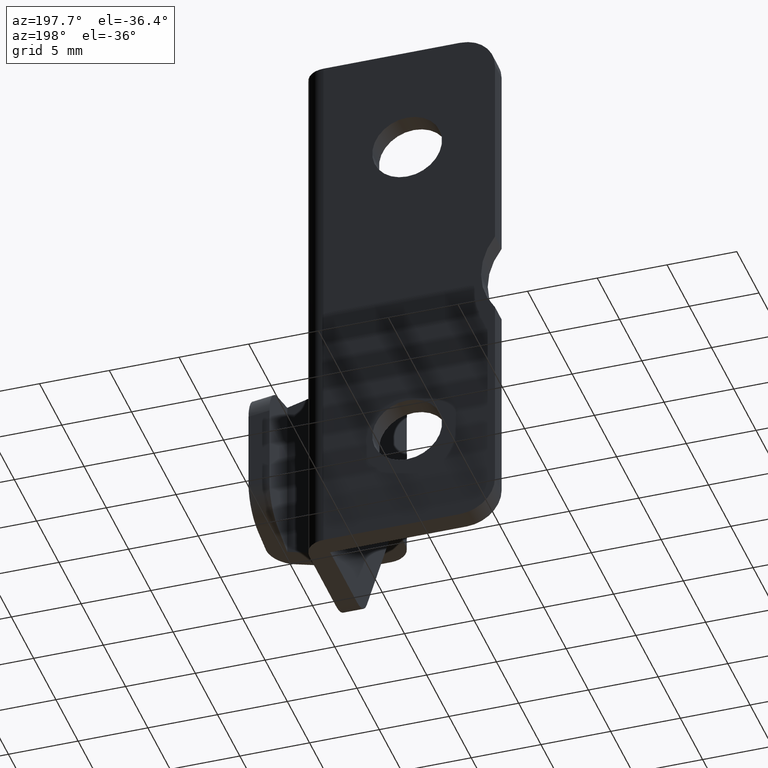
[diagram: clean part render]
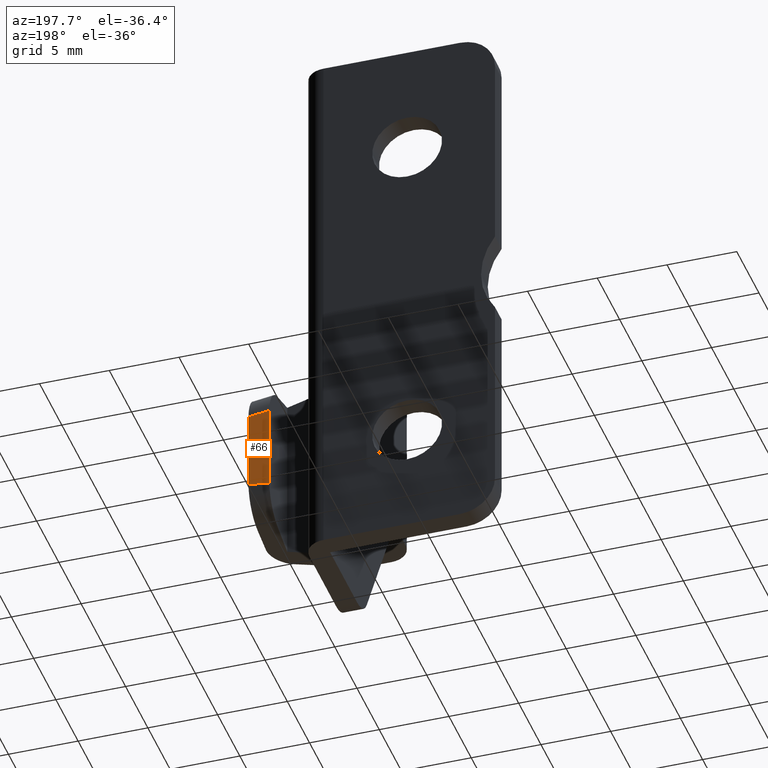
[diagram: same view with one face highlighted and labeled with its STEP entity id]
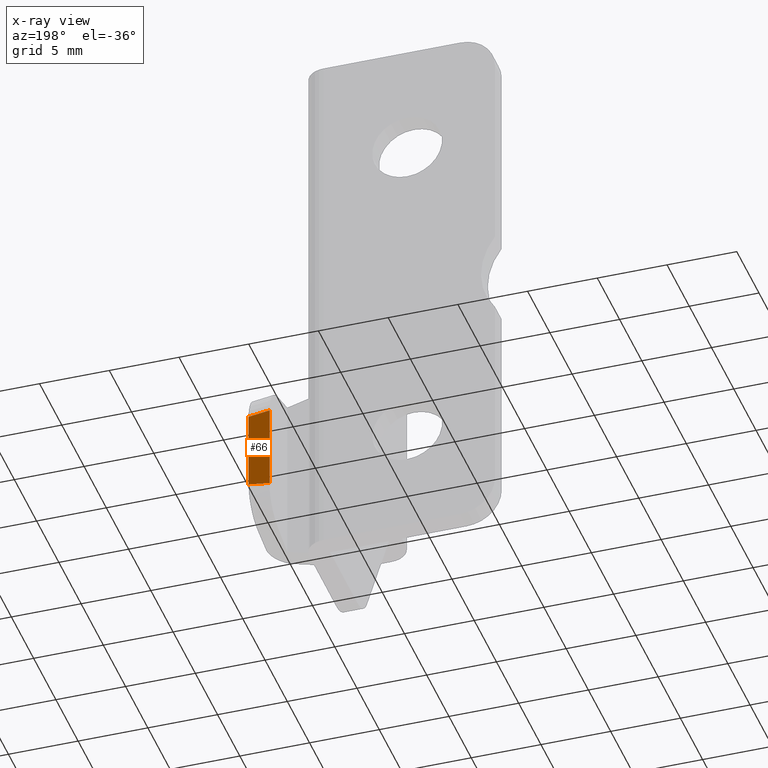
[diagram: x-ray of the same camera — body ghosted, the highlighted face saturated]
A machine part, auxiliary view. The second image highlights one B-rep face of the part: STEP entity #66.
The next image is the same camera in x-ray: the body ghosted, the highlighted face saturated — about 0% of this face is hidden behind the body in this view.
In plain terms, the highlighted planar face has unit normal (0, 1, 0).
Its self-contained STEP definition (entity closure, byte-faithful):
#66=ADVANCED_FACE('',(#340),#339,.T.);
#339=PLANE('',#582);
#340=FACE_OUTER_BOUND('',#583,.T.);
#579=CARTESIAN_POINT('',(2.06499880000E+01,-1.35000000000E+01,-3.69571000673E+00));
#580=DIRECTION('',(0.00000000000E+00,1.00000000000E+00,3.64291992941E-15));
#581=DIRECTION('',(0.00000000000E+00,-3.64291992941E-15,1.00000000000E+00));
#582=AXIS2_PLACEMENT_3D('',#579,#580,#581);
#583=EDGE_LOOP('',(#766,#767,#768,#769));
#766=ORIENTED_EDGE('',*,*,#904,.T.);
#767=ORIENTED_EDGE('',*,*,#892,.T.);
#768=ORIENTED_EDGE('',*,*,#902,.F.);
#769=ORIENTED_EDGE('',*,*,#815,.F.);
#815=EDGE_CURVE('',#910,#917,#918,.T.);
#892=EDGE_CURVE('',#1422,#1429,#1436,.T.);
#902=EDGE_CURVE('',#917,#1429,#1499,.T.);
#904=EDGE_CURVE('',#910,#1422,#1511,.T.);
#910=VERTEX_POINT('',#1542);
#917=VERTEX_POINT('',#1557);
#918=(BOUNDED_CURVE() B_SPLINE_CURVE(3,(#1558,#1559,#1560,#1561,#1562,#1563,#1564,#1565,#1566,#1567,#1568,#1569,#1570),.UNSPECIFIED.,.F.,.F.) B_SPLINE_CURVE_WITH_KNOTS((4,3,3,3,4),(0.00000000000E+00,1.11012766566E-04,7.94519280862E-04,1.24980621874E-03,1.51456204572E-03),.UNSPECIFIED.) CURVE() GEOMETRIC_REPRESENTATION_ITEM() RATIONAL_B_SPLINE_CURVE((1.00000000000E+00,1.00000000000E+00,1.00000000000E+00,1.00000000000E+00,1.00000000000E+00,1.00000000000E+00,1.00000000000E+00,1.00000000000E+00,1.00000000000E+00,1.00000000000E+00,1.00000000000E+00,1.00000000000E+00,1.00000000000E+00)) REPRESENTATION_ITEM('') );
#1422=VERTEX_POINT('',#1880);
#1429=VERTEX_POINT('',#1895);
#1436=(BOUNDED_CURVE() B_SPLINE_CURVE(3,(#1908,#1909,#1910,#1911,#1912,#1913,#1914,#1915,#1916,#1917,#1918,#1919,#1920),.UNSPECIFIED.,.F.,.F.) B_SPLINE_CURVE_WITH_KNOTS((4,3,3,3,4),(0.00000000000E+00,1.11012766566E-04,7.94519280862E-04,1.24980621874E-03,1.51456204572E-03),.UNSPECIFIED.) CURVE() GEOMETRIC_REPRESENTATION_ITEM() RATIONAL_B_SPLINE_CURVE((1.00000000000E+00,1.00000000000E+00,1.00000000000E+00,1.00000000000E+00,1.00000000000E+00,1.00000000000E+00,1.00000000000E+00,1.00000000000E+00,1.00000000000E+00,1.00000000000E+00,1.00000000000E+00,1.00000000000E+00,1.00000000000E+00)) REPRESENTATION_ITEM('') );
#1499=LINE('',#1951,#1952);
#1511=LINE('',#1957,#1958);
#1542=CARTESIAN_POINT('',(2.22999880000E+01,-1.35000000000E+01,2.87040637198E+00));
#1557=CARTESIAN_POINT('',(2.07999880000E+01,-1.35000000000E+01,3.07975833894E+00));
#1558=CARTESIAN_POINT('',(2.22999880000E+01,-1.35000000000E+01,2.87040637198E+00));
#1559=CARTESIAN_POINT('',(2.22633845857E+01,-1.35000000000E+01,2.87583822139E+00));
#1560=CARTESIAN_POINT('',(2.22267776717E+01,-1.35000000000E+01,2.88124653918E+00));
#1561=CARTESIAN_POINT('',(2.21901673119E+01,-1.35000000000E+01,2.88663137754E+00));
#1562=CARTESIAN_POINT('',(2.19647587163E+01,-1.35000000000E+01,2.91978562292E+00));
#1563=CARTESIAN_POINT('',(2.17392174453E+01,-1.35000000000E+01,2.95204958019E+00));
#1564=CARTESIAN_POINT('',(2.15135563452E+01,-1.35000000000E+01,2.98343917732E+00));
#1565=CARTESIAN_POINT('',(2.13632417654E+01,-1.35000000000E+01,3.00434802736E+00));
#1566=CARTESIAN_POINT('',(2.12128727722E+01,-1.35000000000E+01,3.02486923689E+00));
#1567=CARTESIAN_POINT('',(2.10624532162E+01,-1.35000000000E+01,3.04500900009E+00));
#1568=CARTESIAN_POINT('',(2.09749819159E+01,-1.35000000000E+01,3.05672058417E+00));
#1569=CARTESIAN_POINT('',(2.08874932580E+01,-1.35000000000E+01,3.06830323479E+00));
#1570=CARTESIAN_POINT('',(2.07999880000E+01,-1.35000000000E+01,3.07975833894E+00));
#1880=CARTESIAN_POINT('',(2.22999880000E+01,-1.35000000000E+01,-2.87040637198E+00));
#1895=CARTESIAN_POINT('',(2.07999880000E+01,-1.35000000000E+01,-3.07975833894E+00));
#1908=CARTESIAN_POINT('',(2.22999880000E+01,-1.35000000000E+01,-2.87040637198E+00));
#1909=CARTESIAN_POINT('',(2.22633845857E+01,-1.35000000000E+01,-2.87583822139E+00));
#1910=CARTESIAN_POINT('',(2.22267776717E+01,-1.35000000000E+01,-2.88124653918E+00));
#1911=CARTESIAN_POINT('',(2.21901673119E+01,-1.35000000000E+01,-2.88663137754E+00));
#1912=CARTESIAN_POINT('',(2.19647587163E+01,-1.35000000000E+01,-2.91978562292E+00));
#1913=CARTESIAN_POINT('',(2.17392174453E+01,-1.35000000000E+01,-2.95204958019E+00));
#1914=CARTESIAN_POINT('',(2.15135563452E+01,-1.35000000000E+01,-2.98343917732E+00));
#1915=CARTESIAN_POINT('',(2.13632417654E+01,-1.35000000000E+01,-3.00434802736E+00));
#1916=CARTESIAN_POINT('',(2.12128727722E+01,-1.35000000000E+01,-3.02486923689E+00));
#1917=CARTESIAN_POINT('',(2.10624532162E+01,-1.35000000000E+01,-3.04500900009E+00));
#1918=CARTESIAN_POINT('',(2.09749819159E+01,-1.35000000000E+01,-3.05672058417E+00));
#1919=CARTESIAN_POINT('',(2.08874932580E+01,-1.35000000000E+01,-3.06830323479E+00));
#1920=CARTESIAN_POINT('',(2.07999880000E+01,-1.35000000000E+01,-3.07975833894E+00));
#1951=CARTESIAN_POINT('',(2.07999880000E+01,-1.35000000000E+01,3.07975833894E+00));
#1952=VECTOR('',#1953,6.15951667788E+00);
#1953=DIRECTION('',(0.00000000000E+00,3.46070693328E-15,-1.00000000000E+00));
#1957=CARTESIAN_POINT('',(2.22999880000E+01,-1.35000000000E+01,2.87040637198E+00));
#1958=VECTOR('',#1959,5.74081274396E+00);
#1959=DIRECTION('',(0.00000000000E+00,3.71311224098E-15,-1.00000000000E+00));